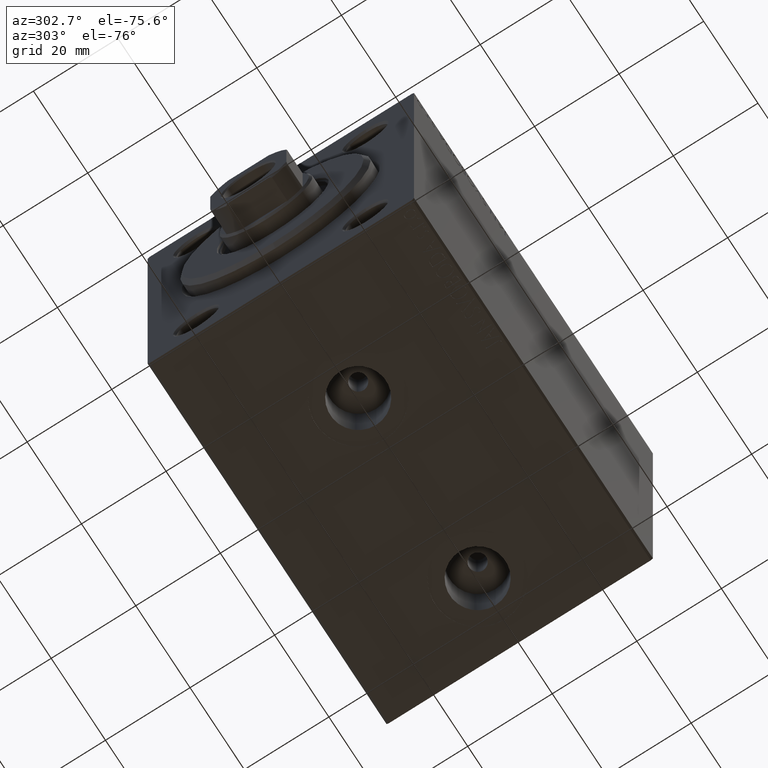
[diagram: clean part render]
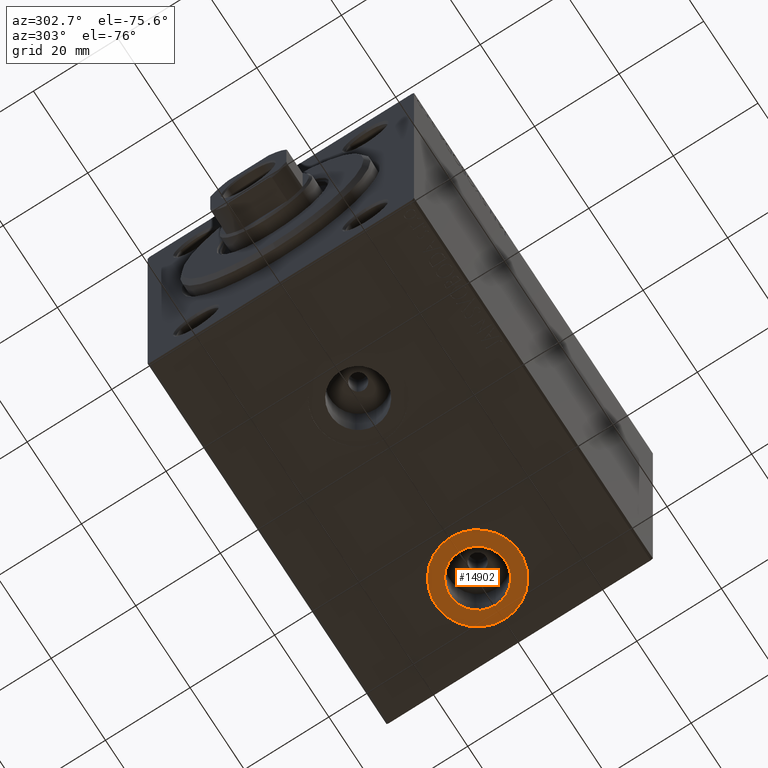
[diagram: same view with one face highlighted and labeled with its STEP entity id]
A machine part, auxiliary view. The second image highlights one B-rep face of the part: STEP entity #14902.
In plain terms, the highlighted planar face has unit normal (0, 0, -1).
Its self-contained STEP definition (entity closure, byte-faithful):
#575 = FACE_OUTER_BOUND ( 'NONE', #3540, .T. ) ;
#2384 = EDGE_CURVE ( 'NONE', #13598, #39322, #21976, .T. ) ;
#3132 = VERTEX_POINT ( 'NONE', #32460 ) ;
#3540 = EDGE_LOOP ( 'NONE', ( #17012, #7684 ) ) ;
#3939 = DIRECTION ( 'NONE',  ( 0.000000000000000000, 0.000000000000000000, -1.000000000000000000 ) ) ;
#4974 = ORIENTED_EDGE ( 'NONE', *, *, #29003, .F. ) ;
#6856 = DIRECTION ( 'NONE',  ( -1.000000000000000000, 0.000000000000000000, -0.000000000000000000 ) ) ;
#7168 = AXIS2_PLACEMENT_3D ( 'NONE', #37589, #3939, #6856 ) ;
#7684 = ORIENTED_EDGE ( 'NONE', *, *, #2384, .T. ) ;
#8370 = AXIS2_PLACEMENT_3D ( 'NONE', #22797, #28859, #9127 ) ;
#9127 = DIRECTION ( 'NONE',  ( -1.000000000000000000, 0.000000000000000000, 0.000000000000000000 ) ) ;
#10231 = DIRECTION ( 'NONE',  ( -1.000000000000000000, 0.000000000000000000, 0.000000000000000000 ) ) ;
#11772 = EDGE_CURVE ( 'NONE', #39322, #13598, #20808, .T. ) ;
#13598 = VERTEX_POINT ( 'NONE', #31605 ) ;
#14032 = CARTESIAN_POINT ( 'NONE',  ( 79.08000000000001251, -6.717509091415147771E-15, -42.40000000000000568 ) ) ;
#14902 = ADVANCED_FACE ( 'NONE', ( #34665, #575 ), #40949, .T. ) ;
#15992 = AXIS2_PLACEMENT_3D ( 'NONE', #22623, #36308, #32065 ) ;
#16510 = CARTESIAN_POINT ( 'NONE',  ( 72.50000000000001421, -7.523326685254106813E-15, -42.40000000000000568 ) ) ;
#17012 = ORIENTED_EDGE ( 'NONE', *, *, #11772, .T. ) ;
#17966 = AXIS2_PLACEMENT_3D ( 'NONE', #16510, #20778, #10231 ) ;
#18252 = CARTESIAN_POINT ( 'NONE',  ( 62.50000000000001421, -7.523326685254106813E-15, -42.40000000000000568 ) ) ;
#20778 = DIRECTION ( 'NONE',  ( 0.000000000000000000, 0.000000000000000000, -1.000000000000000000 ) ) ;
#20808 = CIRCLE ( 'NONE', #17966, 9.999999999999994671 ) ;
#21345 = AXIS2_PLACEMENT_3D ( 'NONE', #38744, #22118, #35804 ) ;
#21976 = CIRCLE ( 'NONE', #8370, 9.999999999999994671 ) ;
#22118 = DIRECTION ( 'NONE',  ( 0.000000000000000000, 0.000000000000000000, -1.000000000000000000 ) ) ;
#22623 = CARTESIAN_POINT ( 'NONE',  ( 72.50000000000001421, -7.523326685254106813E-15, -42.40000000000000568 ) ) ;
#22797 = CARTESIAN_POINT ( 'NONE',  ( 72.50000000000001421, -7.523326685254106813E-15, -42.40000000000000568 ) ) ;
#26796 = VERTEX_POINT ( 'NONE', #14032 ) ;
#28859 = DIRECTION ( 'NONE',  ( 0.000000000000000000, 0.000000000000000000, -1.000000000000000000 ) ) ;
#29003 = EDGE_CURVE ( 'NONE', #3132, #26796, #36060, .T. ) ;
#30439 = ORIENTED_EDGE ( 'NONE', *, *, #41142, .F. ) ;
#31363 = CIRCLE ( 'NONE', #21345, 6.580000000000002736 ) ;
#31605 = CARTESIAN_POINT ( 'NONE',  ( 82.50000000000000000, -6.298679886106753753E-15, -42.40000000000000568 ) ) ;
#32065 = DIRECTION ( 'NONE',  ( -1.000000000000000000, 0.000000000000000000, 0.000000000000000000 ) ) ;
#32460 = CARTESIAN_POINT ( 'NONE',  ( 65.92000000000000171, -7.523326685254106813E-15, -42.40000000000000568 ) ) ;
#34159 = EDGE_LOOP ( 'NONE', ( #4974, #30439 ) ) ;
#34665 = FACE_BOUND ( 'NONE', #34159, .T. ) ;
#35804 = DIRECTION ( 'NONE',  ( -1.000000000000000000, 0.000000000000000000, 0.000000000000000000 ) ) ;
#36060 = CIRCLE ( 'NONE', #15992, 6.580000000000002736 ) ;
#36308 = DIRECTION ( 'NONE',  ( 0.000000000000000000, 0.000000000000000000, -1.000000000000000000 ) ) ;
#37589 = CARTESIAN_POINT ( 'NONE',  ( 72.50000000000001421, -7.523326685254106813E-15, -42.40000000000000568 ) ) ;
#38744 = CARTESIAN_POINT ( 'NONE',  ( 72.50000000000001421, -7.523326685254106813E-15, -42.40000000000000568 ) ) ;
#39322 = VERTEX_POINT ( 'NONE', #18252 ) ;
#40949 = PLANE ( 'NONE',  #7168 ) ;
#41142 = EDGE_CURVE ( 'NONE', #26796, #3132, #31363, .T. ) ;